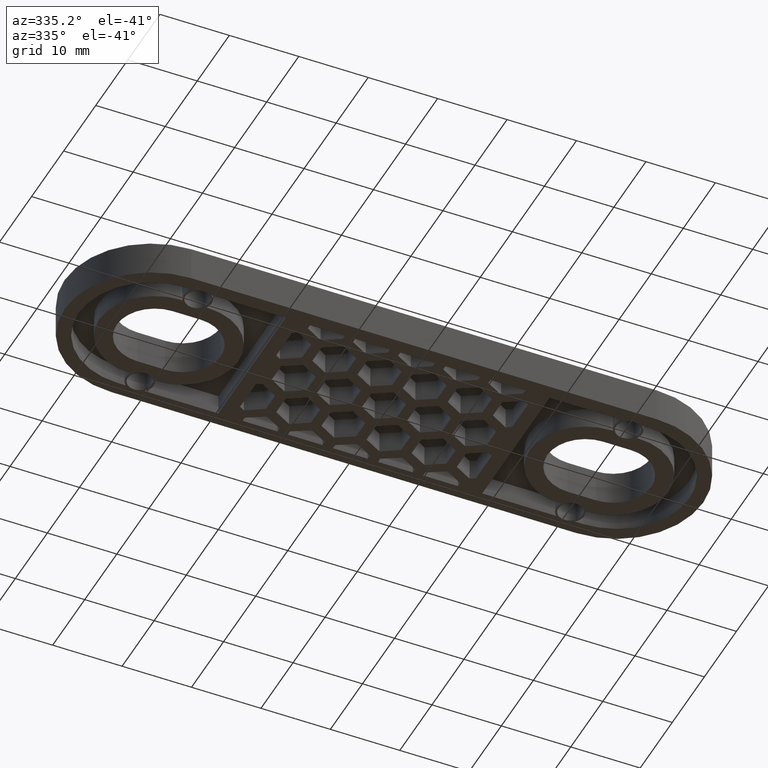
[diagram: clean part render]
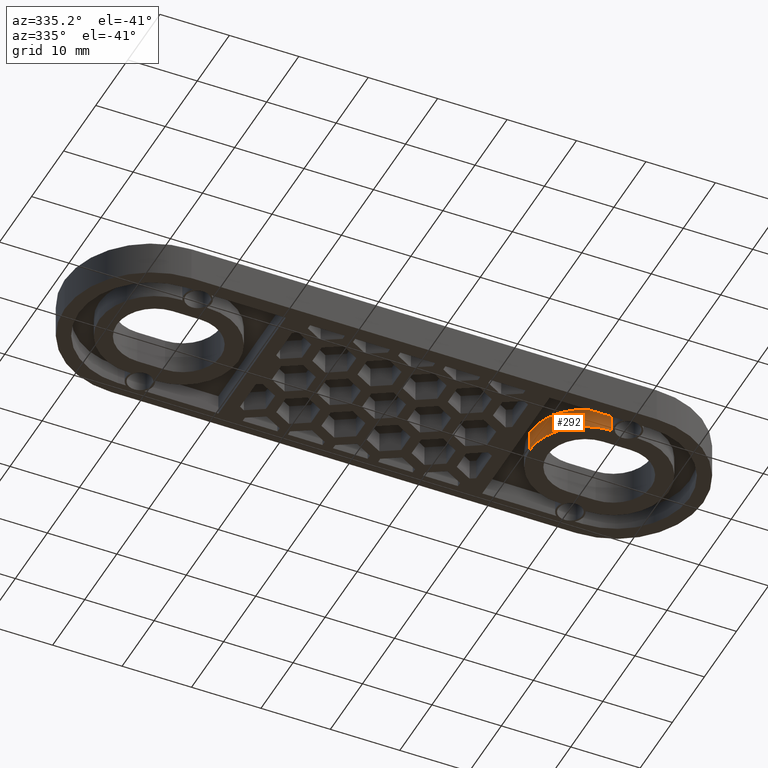
[diagram: same view with one face highlighted and labeled with its STEP entity id]
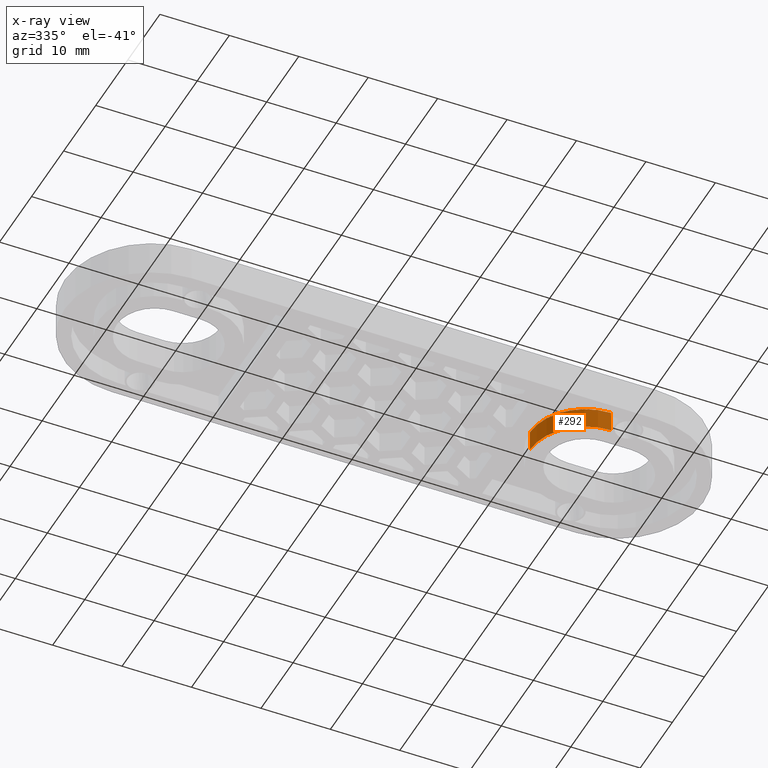
[diagram: x-ray of the same camera — body ghosted, the highlighted face saturated]
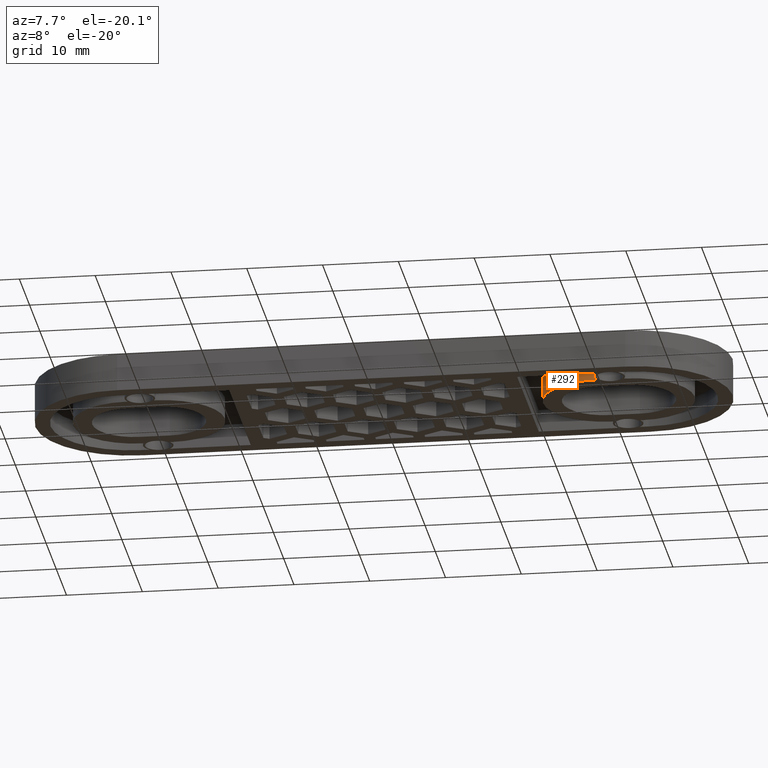
[diagram: same view with one face highlighted and labeled with its STEP entity id]
A machine part, auxiliary view. The second image highlights one B-rep face of the part: STEP entity #292.
The next image is the same camera in x-ray: the body ghosted, the highlighted face saturated — about 0% of this face is hidden behind the body in this view.
A second angle (auxiliary view) of the same face is appended — the face is thin or edge-on in the first view.
In plain terms, the highlighted cylindrical surface (partial cylindrical patch) has radius 8 mm, axis along (0, -0, -1).
Its self-contained STEP definition (entity closure, byte-faithful):
#292 = ADVANCED_FACE( '', ( #847 ), #848, .T. );
#847 = FACE_OUTER_BOUND( '', #1471, .T. );
#848 = CYLINDRICAL_SURFACE( '', #1472, 8.00000000000000 );
#1471 = EDGE_LOOP( '', ( #3376, #3377, #3378, #3379 ) );
#1472 = AXIS2_PLACEMENT_3D( '', #3380, #3381, #3382 );
#3376 = ORIENTED_EDGE( '', *, *, #4580, .T. );
#3377 = ORIENTED_EDGE( '', *, *, #3985, .T. );
#3378 = ORIENTED_EDGE( '', *, *, #4581, .F. );
#3379 = ORIENTED_EDGE( '', *, *, #4000, .T. );
#3380 = CARTESIAN_POINT( '', ( 29.0000000000000, 5.20417042793042E-015, -6.93889390390723E-015 ) );
#3381 = DIRECTION( '', ( 2.73691106313441E-048, -6.12303176911189E-017, -1.00000000000000 ) );
#3382 = DIRECTION( '', ( -1.15648231731787E-016, 1.00000000000000, -6.12303176911189E-017 ) );
#3985 = EDGE_CURVE( '', #4778, #4776, #4779, .T. );
#4000 = EDGE_CURVE( '', #4805, #4803, #4806, .T. );
#4580 = EDGE_CURVE( '', #4803, #4778, #5772, .T. );
#4581 = EDGE_CURVE( '', #4805, #4776, #5773, .T. );
#4776 = VERTEX_POINT( '', #6030 );
#4778 = VERTEX_POINT( '', #6032 );
#4779 = CIRCLE( '', #6033, 8.00000000000000 );
#4803 = VERTEX_POINT( '', #6066 );
#4805 = VERTEX_POINT( '', #6069 );
#4806 = CIRCLE( '', #6070, 8.00000000000000 );
#5772 = LINE( '', #7577, #7578 );
#5773 = LINE( '', #7579, #7580 );
#6030 = CARTESIAN_POINT( '', ( 21.0000000000000, 3.65313790502697E-015, 2.99999999999998 ) );
#6032 = CARTESIAN_POINT( '', ( 29.0000000000000, -8.00000000000000, 2.99999999999998 ) );
#6033 = AXIS2_PLACEMENT_3D( '', #7807, #7808, #7809 );
#6066 = CARTESIAN_POINT( '', ( 29.0000000000000, -8.00000000000000, -6.44905136237828E-015 ) );
#6069 = CARTESIAN_POINT( '', ( 21.0000000000000, 3.46944695195361E-015, -6.93889390390723E-015 ) );
#6070 = AXIS2_PLACEMENT_3D( '', #7832, #7833, #7834 );
#7577 = CARTESIAN_POINT( '', ( 29.0000000000000, -8.00000000000000, -6.44905136237828E-015 ) );
#7578 = VECTOR( '', #8490, 1000.00000000000 );
#7579 = CARTESIAN_POINT( '', ( 21.0000000000000, 3.46944695195361E-015, -6.93889390390723E-015 ) );
#7580 = VECTOR( '', #8491, 1000.00000000000 );
#7807 = CARTESIAN_POINT( '', ( 29.0000000000000, 5.38786138100378E-015, 2.99999999999998 ) );
#7808 = DIRECTION( '', ( 0.000000000000000, -6.12303176911189E-017, -1.00000000000000 ) );
#7809 = DIRECTION( '', ( 0.000000000000000, 1.00000000000000, -6.12303176911189E-017 ) );
#7832 = CARTESIAN_POINT( '', ( 29.0000000000000, 5.20417042793042E-015, -6.93889390390723E-015 ) );
#7833 = DIRECTION( '', ( -2.73691106313441E-048, 6.12303176911189E-017, 1.00000000000000 ) );
#7834 = DIRECTION( '', ( 1.15648231731787E-016, -1.00000000000000, 6.12303176911189E-017 ) );
#8490 = DIRECTION( '', ( 0.000000000000000, 6.12303176911189E-017, 1.00000000000000 ) );
#8491 = DIRECTION( '', ( 0.000000000000000, 6.12303176911189E-017, 1.00000000000000 ) );